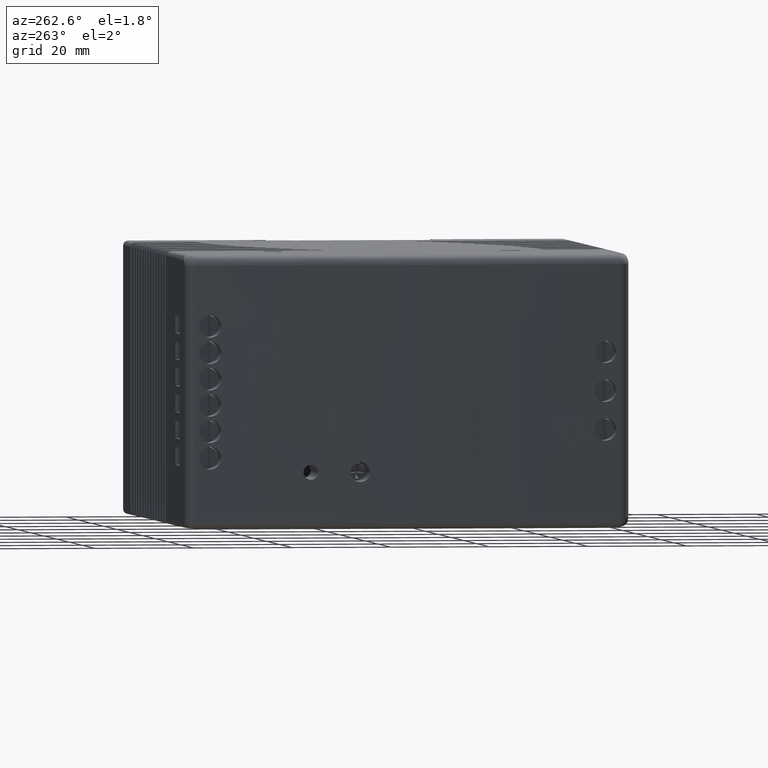
[diagram: clean part render]
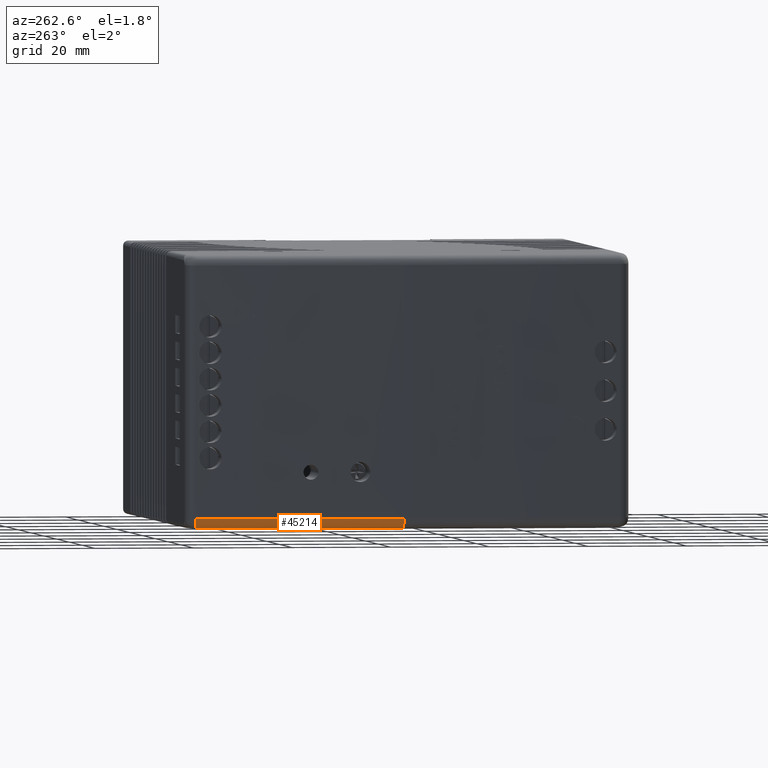
[diagram: same view with one face highlighted and labeled with its STEP entity id]
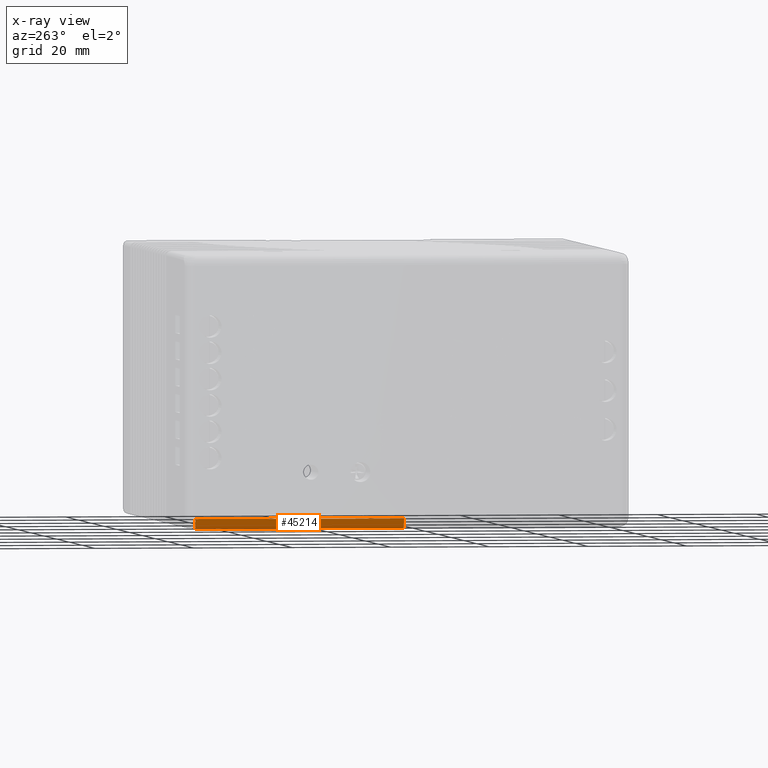
[diagram: x-ray of the same camera — body ghosted, the highlighted face saturated]
A machine part, auxiliary view. The second image highlights one B-rep face of the part: STEP entity #45214.
The next image is the same camera in x-ray: the body ghosted, the highlighted face saturated — about 0% of this face is hidden behind the body in this view.
In plain terms, the highlighted toroidal blend (fillet) surface has major radius 472.062 mm and minor (blend) radius 2 mm.
Its self-contained STEP definition (entity closure, byte-faithful):
#40676=CARTESIAN_POINT('',(-31.210439425180493,16.867819643297452,53.0));
#40677=VERTEX_POINT('',#40676);
#40684=CARTESIAN_POINT('',(-29.338970108572788,-25.214058266397981,53.0));
#40685=VERTEX_POINT('',#40684);
#40686=CARTESIAN_POINT('',(-503.401470108576400,-25.214058266398162,53.0));
#40687=DIRECTION('',(0.0,0.0,1.000000000000000));
#40688=DIRECTION('',(0.998944729952729,0.045928493331160,0.0));
#40689=AXIS2_PLACEMENT_3D('',#40686,#40687,#40688);
#40690=CIRCLE('',#40689,474.062500000004490);
#40691=EDGE_CURVE('',#40685,#40677,#40690,.T.);
#45163=CARTESIAN_POINT('',(-33.202543971240971,16.690282386460268,55.0));
#45164=VERTEX_POINT('',#45163);
#45172=CARTESIAN_POINT('',(-33.202543971240971,16.690282386460240,53.0));
#45173=DIRECTION('',(-0.088768628418606,0.996052273030226,-1.548176E-014));
#45174=DIRECTION('',(0.996052273030226,0.088768628418606,0.0));
#45175=AXIS2_PLACEMENT_3D('',#45172,#45173,#45174);
#45176=CIRCLE('',#45175,2.000000000000027);
#45177=EDGE_CURVE('',#40677,#45164,#45176,.F.);
#45189=CARTESIAN_POINT('',(-503.401470108576400,-25.214058266398162,53.0));
#45190=DIRECTION('',(0.0,0.0,-1.0));
#45191=DIRECTION('',(-1.0,0.0,0.0));
#45192=AXIS2_PLACEMENT_3D('',#45189,#45190,#45191);
#45193=TOROIDAL_SURFACE('',#45192,472.062500000004430,2.0);
#45194=CARTESIAN_POINT('',(-31.338970108571967,-25.214058266397981,55.0));
#45195=VERTEX_POINT('',#45194);
#45196=CARTESIAN_POINT('',(-31.338970108571967,-25.214058266397981,53.0));
#45197=DIRECTION('',(0.0,1.0,0.0));
#45198=DIRECTION('',(0.0,0.0,1.0));
#45199=AXIS2_PLACEMENT_3D('',#45196,#45197,#45198);
#45200=CIRCLE('',#45199,2.000000000000002);
#45201=EDGE_CURVE('',#45195,#40685,#45200,.T.);
#45202=ORIENTED_EDGE('',*,*,#45201,.T.);
#45203=ORIENTED_EDGE('',*,*,#40691,.T.);
#45204=ORIENTED_EDGE('',*,*,#45177,.T.);
#45205=CARTESIAN_POINT('',(-503.401470108576400,-25.214058266398162,55.0));
#45206=DIRECTION('',(0.0,0.0,-1.000000000000000));
#45207=DIRECTION('',(0.998944729952728,0.045928493331160,0.0));
#45208=AXIS2_PLACEMENT_3D('',#45205,#45206,#45207);
#45209=CIRCLE('',#45208,472.062500000004380);
#45210=EDGE_CURVE('',#45164,#45195,#45209,.T.);
#45211=ORIENTED_EDGE('',*,*,#45210,.T.);
#45212=EDGE_LOOP('',(#45202,#45203,#45204,#45211));
#45213=FACE_OUTER_BOUND('',#45212,.T.);
#45214=ADVANCED_FACE('',(#45213),#45193,.T.);